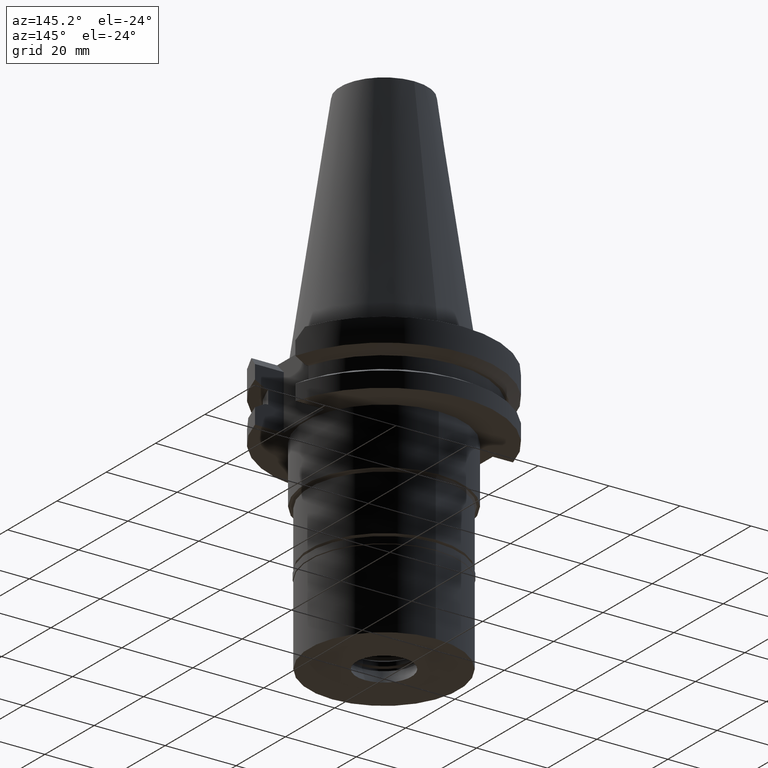
[diagram: clean part render]
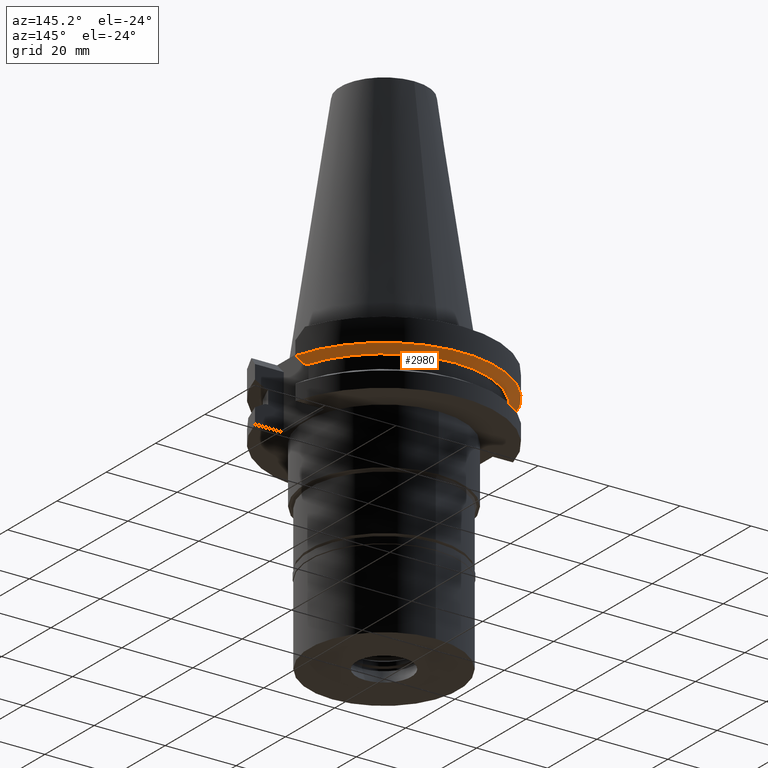
[diagram: same view with one face highlighted and labeled with its STEP entity id]
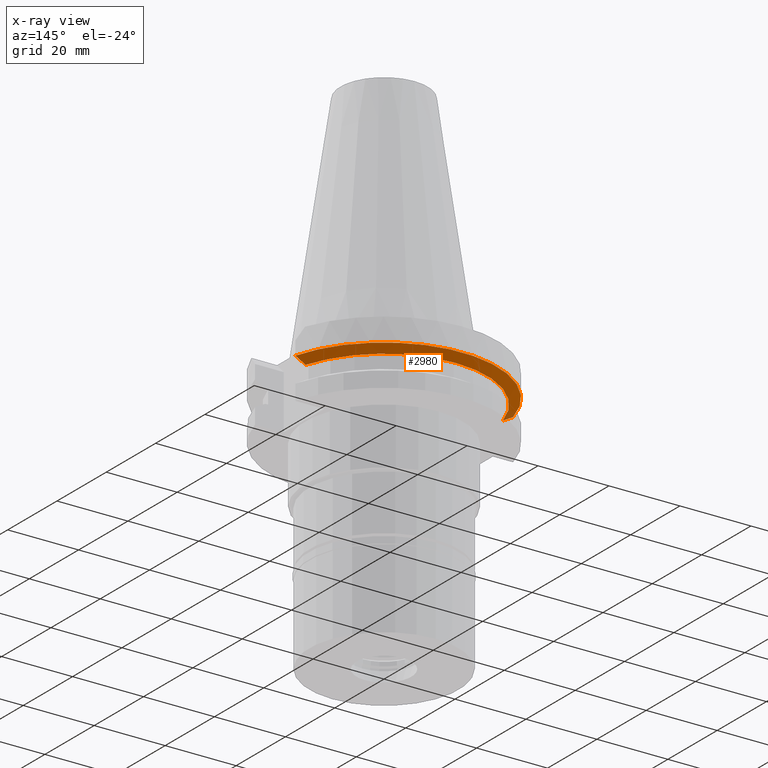
[diagram: x-ray of the same camera — body ghosted, the highlighted face saturated]
A machine part, auxiliary view. The second image highlights one B-rep face of the part: STEP entity #2980.
The next image is the same camera in x-ray: the body ghosted, the highlighted face saturated — about 2% of this face is hidden behind the body in this view.
In plain terms, the highlighted conical surface has half-angle 60 deg.
Its self-contained STEP definition (entity closure, byte-faithful):
#99 = CARTESIAN_POINT ( 'NONE',  ( -27.78616455083999881, 8.190000190101001110, -9.207500000000999663 ) ) ;
#164 = CARTESIAN_POINT ( 'NONE',  ( 0.0000000000000000000, 0.0000000000000000000, -9.207500000002999840 ) ) ;
#179 = CARTESIAN_POINT ( 'NONE',  ( 28.70626002890957551, 8.189998716289446534, -8.697957601314895371 ) ) ;
#189 = VERTEX_POINT ( 'NONE', #2602 ) ;
#391 = EDGE_LOOP ( 'NONE', ( #1775, #3173, #2833, #2767 ) ) ;
#498 = DIRECTION ( 'NONE',  ( 0.0000000000000000000, 1.000000000000000000, 0.0000000000000000000 ) ) ;
#501 = B_SPLINE_CURVE_WITH_KNOTS ( 'NONE', 3,
 ( #1431, #2466, #179, #3218 ),
 .UNSPECIFIED., .F., .F.,
 ( 4, 4 ),
 ( 0.0000000000000000000, 1.000000000000000000 ),
 .UNSPECIFIED. ) ;
#666 = CARTESIAN_POINT ( 'NONE',  ( -27.78616455083999881, 8.190000190101001110, -9.207500000000999663 ) ) ;
#678 = DIRECTION ( 'NONE',  ( 0.0000000000000000000, 1.000000000000000000, 0.0000000000000000000 ) ) ;
#983 = CARTESIAN_POINT ( 'NONE',  ( 0.0000000000000000000, 0.0000000000000000000, -8.404416615464000984 ) ) ;
#1103 = CARTESIAN_POINT ( 'NONE',  ( -30.67550146378999898, 8.190000607155999646, -7.601327805026000028 ) ) ;
#1143 = DIRECTION ( 'NONE',  ( 0.9661575315241073270, 0.2579527559055020958, 0.0000000000000000000 ) ) ;
#1179 = VERTEX_POINT ( 'NONE', #666 ) ;
#1316 = CARTESIAN_POINT ( 'NONE',  ( -29.66936142608819793, 8.190001213874223751, -8.162569430987153041 ) ) ;
#1329 = CARTESIAN_POINT ( 'NONE',  ( 27.78617706758999972, 8.189999358852999123, -9.207500000000999663 ) ) ;
#1398 = VERTEX_POINT ( 'NONE', #2783 ) ;
#1431 = CARTESIAN_POINT ( 'NONE',  ( 30.67550165959999831, 8.189999873741001579, -7.601334359228999915 ) ) ;
#1443 = AXIS2_PLACEMENT_3D ( 'NONE', #983, #2749, #498 ) ;
#1501 = FACE_OUTER_BOUND ( 'NONE', #391, .T. ) ;
#1507 = EDGE_CURVE ( 'NONE', #1179, #189, #2566, .T. ) ;
#1541 = CIRCLE ( 'NONE', #1597, 28.96803755052999918 ) ;
#1597 = AXIS2_PLACEMENT_3D ( 'NONE', #164, #2192, #678 ) ;
#1652 = CARTESIAN_POINT ( 'NONE',  ( 0.0000000000000000000, 0.0000000000000000000, -7.601333230925999551 ) ) ;
#1704 = EDGE_CURVE ( 'NONE', #2735, #1179, #1541, .T. ) ;
#1763 = CONICAL_SURFACE ( 'NONE', #1443, 30.35901877526999826, 1.047197551196400456 ) ;
#1775 = ORIENTED_EDGE ( 'NONE', *, *, #2894, .T. ) ;
#2192 = DIRECTION ( 'NONE',  ( 0.0000000000000000000, 0.0000000000000000000, 1.000000000000000000 ) ) ;
#2425 = DIRECTION ( 'NONE',  ( 0.0000000000000000000, 0.0000000000000000000, 1.000000000000000000 ) ) ;
#2466 = CARTESIAN_POINT ( 'NONE',  ( 29.66936065556240365, 8.189999747574754352, -8.162570082752392153 ) ) ;
#2566 = B_SPLINE_CURVE_WITH_KNOTS ( 'NONE', 3,
 ( #99, #3128, #1316, #1103 ),
 .UNSPECIFIED., .F., .F.,
 ( 4, 4 ),
 ( 0.0000000000000000000, 1.000000000000000000 ),
 .UNSPECIFIED. ) ;
#2602 = CARTESIAN_POINT ( 'NONE',  ( -30.67550146378999898, 8.190000607155999646, -7.601327805026000028 ) ) ;
#2735 = VERTEX_POINT ( 'NONE', #1329 ) ;
#2749 = DIRECTION ( 'NONE',  ( 0.0000000000000000000, 0.0000000000000000000, 1.000000000000000000 ) ) ;
#2767 = ORIENTED_EDGE ( 'NONE', *, *, #2846, .F. ) ;
#2783 = CARTESIAN_POINT ( 'NONE',  ( 30.67550165959999831, 8.189999873741001579, -7.601334359228999915 ) ) ;
#2833 = ORIENTED_EDGE ( 'NONE', *, *, #1507, .T. ) ;
#2846 = EDGE_CURVE ( 'NONE', #1398, #189, #2948, .T. ) ;
#2894 = EDGE_CURVE ( 'NONE', #1398, #2735, #501, .T. ) ;
#2948 = CIRCLE ( 'NONE', #3000, 31.74999999999998579 ) ;
#2980 = ADVANCED_FACE ( 'NONE', ( #1501 ), #1763, .T. ) ;
#3000 = AXIS2_PLACEMENT_3D ( 'NONE', #1652, #2425, #1143 ) ;
#3128 = CARTESIAN_POINT ( 'NONE',  ( -28.70625670165298615, 8.190000380633177812, -8.697959194740288780 ) ) ;
#3173 = ORIENTED_EDGE ( 'NONE', *, *, #1704, .T. ) ;
#3218 = CARTESIAN_POINT ( 'NONE',  ( 27.78617706758999972, 8.189999358852999123, -9.207500000000999663 ) ) ;